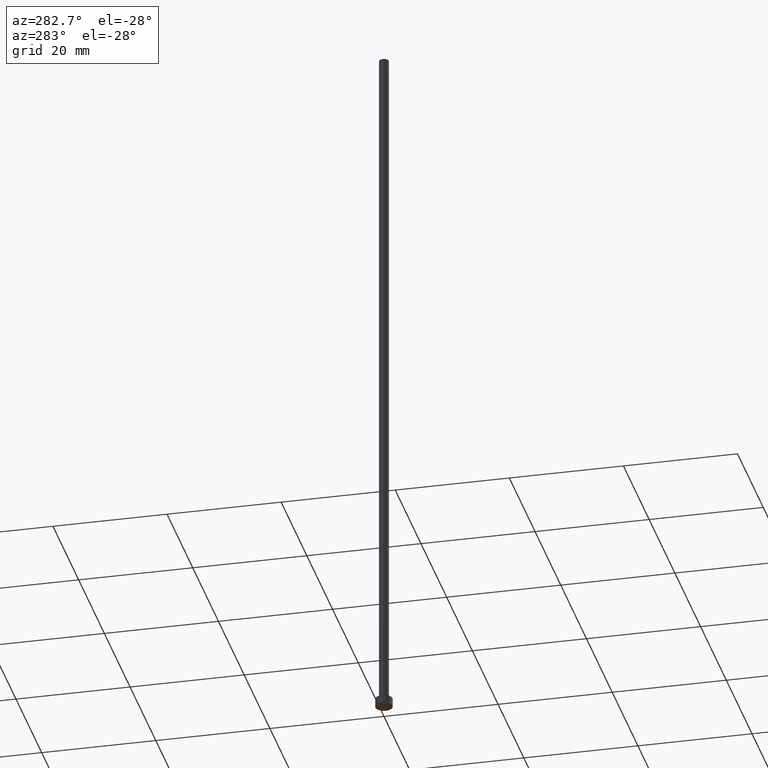
[diagram: clean part render]
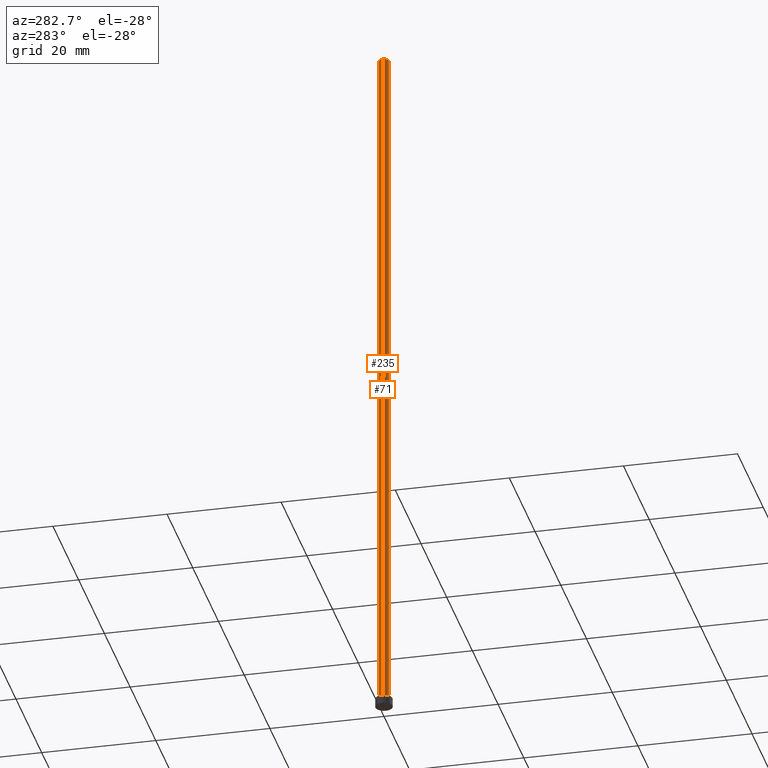
[diagram: same view with one multi-face feature highlighted, each face labeled with its STEP entity id]
A machine part, auxiliary view. The highlighted faces form ONE feature: a constant-radius fillet chain: 2 tangent blend faces with common blend radius 0.85 mm. The faces share edges in the B-rep.
Their STEP definitions:
[1] entity #235 (Cylinder):
#20 = EDGE_LOOP ( 'NONE', ( #61, #73, #150, #156 ) ) ;
#24 = FACE_OUTER_BOUND ( 'NONE', #20, .T. ) ;
#29 = EDGE_CURVE ( 'NONE', #188, #178, #51, .T. ) ;
#42 = EDGE_CURVE ( 'NONE', #236, #178, #84, .T. ) ;
#48 = CARTESIAN_POINT ( 'NONE',  ( 0.8499999999999999778, 1.040949779275250140E-16, 125.0000000000000000 ) ) ;
#49 = CARTESIAN_POINT ( 'NONE',  ( 0.000000000000000000, 0.000000000000000000, 1.500000000000000000 ) ) ;
#51 = CIRCLE ( 'NONE', #131, 0.8499999999999999778 ) ;
#61 = ORIENTED_EDGE ( 'NONE', *, *, #42, .F. ) ;
#64 = CYLINDRICAL_SURFACE ( 'NONE', #226, 0.8499999999999999778 ) ;
#73 = ORIENTED_EDGE ( 'NONE', *, *, #111, .F. ) ;
#79 = LINE ( 'NONE', #91, #253 ) ;
#84 = LINE ( 'NONE', #48, #151 ) ;
#86 = CARTESIAN_POINT ( 'NONE',  ( 0.8499999999999999778, 1.040949779275250140E-16, 125.0000000000000000 ) ) ;
#91 = CARTESIAN_POINT ( 'NONE',  ( -0.8499999999999999778, 0.000000000000000000, 125.0000000000000000 ) ) ;
#94 = CARTESIAN_POINT ( 'NONE',  ( -0.8499999999999999778, 0.000000000000000000, 125.0000000000000000 ) ) ;
#101 = VERTEX_POINT ( 'NONE', #94 ) ;
#106 = CARTESIAN_POINT ( 'NONE',  ( 0.000000000000000000, 0.000000000000000000, 125.0000000000000000 ) ) ;
#108 = DIRECTION ( 'NONE',  ( 1.000000000000000000, 0.000000000000000000, 0.000000000000000000 ) ) ;
#110 = DIRECTION ( 'NONE',  ( -0.000000000000000000, -0.000000000000000000, -1.000000000000000000 ) ) ;
#111 = EDGE_CURVE ( 'NONE', #101, #236, #148, .T. ) ;
#114 = CARTESIAN_POINT ( 'NONE',  ( -0.8499999999999999778, 0.000000000000000000, 1.500000000000000000 ) ) ;
#131 = AXIS2_PLACEMENT_3D ( 'NONE', #49, #230, #108 ) ;
#148 = CIRCLE ( 'NONE', #234, 0.8499999999999999778 ) ;
#150 = ORIENTED_EDGE ( 'NONE', *, *, #155, .T. ) ;
#151 = VECTOR ( 'NONE', #110, 1000.000000000000000 ) ;
#155 = EDGE_CURVE ( 'NONE', #101, #188, #79, .T. ) ;
#156 = ORIENTED_EDGE ( 'NONE', *, *, #29, .T. ) ;
#165 = DIRECTION ( 'NONE',  ( 1.000000000000000000, 0.000000000000000000, 0.000000000000000000 ) ) ;
#174 = DIRECTION ( 'NONE',  ( -1.000000000000000000, 0.000000000000000000, 0.000000000000000000 ) ) ;
#178 = VERTEX_POINT ( 'NONE', #215 ) ;
#187 = CARTESIAN_POINT ( 'NONE',  ( 0.000000000000000000, 0.000000000000000000, 125.0000000000000000 ) ) ;
#188 = VERTEX_POINT ( 'NONE', #114 ) ;
#196 = DIRECTION ( 'NONE',  ( -0.000000000000000000, -0.000000000000000000, -1.000000000000000000 ) ) ;
#204 = DIRECTION ( 'NONE',  ( 0.000000000000000000, 0.000000000000000000, 1.000000000000000000 ) ) ;
#215 = CARTESIAN_POINT ( 'NONE',  ( 0.8499999999999999778, 1.040949779275250140E-16, 1.500000000000000000 ) ) ;
#226 = AXIS2_PLACEMENT_3D ( 'NONE', #106, #196, #174 ) ;
#230 = DIRECTION ( 'NONE',  ( 0.000000000000000000, 0.000000000000000000, 1.000000000000000000 ) ) ;
#234 = AXIS2_PLACEMENT_3D ( 'NONE', #187, #204, #165 ) ;
#235 = ADVANCED_FACE ( 'NONE', ( #24 ), #64, .T. ) ;
#236 = VERTEX_POINT ( 'NONE', #86 ) ;
#243 = DIRECTION ( 'NONE',  ( -0.000000000000000000, -0.000000000000000000, -1.000000000000000000 ) ) ;
#253 = VECTOR ( 'NONE', #243, 1000.000000000000000 ) ;
[2] entity #71 (Cylinder):
#17 = CIRCLE ( 'NONE', #88, 0.8499999999999999778 ) ;
#19 = DIRECTION ( 'NONE',  ( 1.000000000000000000, 0.000000000000000000, 0.000000000000000000 ) ) ;
#21 = CARTESIAN_POINT ( 'NONE',  ( 0.000000000000000000, 0.000000000000000000, 125.0000000000000000 ) ) ;
#42 = EDGE_CURVE ( 'NONE', #236, #178, #84, .T. ) ;
#44 = FACE_OUTER_BOUND ( 'NONE', #119, .T. ) ;
#47 = AXIS2_PLACEMENT_3D ( 'NONE', #125, #216, #50 ) ;
#48 = CARTESIAN_POINT ( 'NONE',  ( 0.8499999999999999778, 1.040949779275250140E-16, 125.0000000000000000 ) ) ;
#50 = DIRECTION ( 'NONE',  ( 1.000000000000000000, 0.000000000000000000, 0.000000000000000000 ) ) ;
#71 = ADVANCED_FACE ( 'NONE', ( #44 ), #124, .T. ) ;
#79 = LINE ( 'NONE', #91, #253 ) ;
#84 = LINE ( 'NONE', #48, #151 ) ;
#86 = CARTESIAN_POINT ( 'NONE',  ( 0.8499999999999999778, 1.040949779275250140E-16, 125.0000000000000000 ) ) ;
#88 = AXIS2_PLACEMENT_3D ( 'NONE', #200, #112, #19 ) ;
#91 = CARTESIAN_POINT ( 'NONE',  ( -0.8499999999999999778, 0.000000000000000000, 125.0000000000000000 ) ) ;
#92 = CIRCLE ( 'NONE', #47, 0.8499999999999999778 ) ;
#94 = CARTESIAN_POINT ( 'NONE',  ( -0.8499999999999999778, 0.000000000000000000, 125.0000000000000000 ) ) ;
#96 = DIRECTION ( 'NONE',  ( -1.000000000000000000, 0.000000000000000000, 0.000000000000000000 ) ) ;
#98 = AXIS2_PLACEMENT_3D ( 'NONE', #21, #104, #96 ) ;
#101 = VERTEX_POINT ( 'NONE', #94 ) ;
#104 = DIRECTION ( 'NONE',  ( -0.000000000000000000, -0.000000000000000000, -1.000000000000000000 ) ) ;
#107 = ORIENTED_EDGE ( 'NONE', *, *, #42, .T. ) ;
#110 = DIRECTION ( 'NONE',  ( -0.000000000000000000, -0.000000000000000000, -1.000000000000000000 ) ) ;
#112 = DIRECTION ( 'NONE',  ( 0.000000000000000000, 0.000000000000000000, 1.000000000000000000 ) ) ;
#114 = CARTESIAN_POINT ( 'NONE',  ( -0.8499999999999999778, 0.000000000000000000, 1.500000000000000000 ) ) ;
#119 = EDGE_LOOP ( 'NONE', ( #136, #107, #195, #244 ) ) ;
#124 = CYLINDRICAL_SURFACE ( 'NONE', #98, 0.8499999999999999778 ) ;
#125 = CARTESIAN_POINT ( 'NONE',  ( 0.000000000000000000, 0.000000000000000000, 125.0000000000000000 ) ) ;
#136 = ORIENTED_EDGE ( 'NONE', *, *, #221, .F. ) ;
#151 = VECTOR ( 'NONE', #110, 1000.000000000000000 ) ;
#155 = EDGE_CURVE ( 'NONE', #101, #188, #79, .T. ) ;
#178 = VERTEX_POINT ( 'NONE', #215 ) ;
#188 = VERTEX_POINT ( 'NONE', #114 ) ;
#195 = ORIENTED_EDGE ( 'NONE', *, *, #201, .T. ) ;
#200 = CARTESIAN_POINT ( 'NONE',  ( 0.000000000000000000, 0.000000000000000000, 1.500000000000000000 ) ) ;
#201 = EDGE_CURVE ( 'NONE', #178, #188, #17, .T. ) ;
#215 = CARTESIAN_POINT ( 'NONE',  ( 0.8499999999999999778, 1.040949779275250140E-16, 1.500000000000000000 ) ) ;
#216 = DIRECTION ( 'NONE',  ( 0.000000000000000000, 0.000000000000000000, 1.000000000000000000 ) ) ;
#221 = EDGE_CURVE ( 'NONE', #236, #101, #92, .T. ) ;
#236 = VERTEX_POINT ( 'NONE', #86 ) ;
#243 = DIRECTION ( 'NONE',  ( -0.000000000000000000, -0.000000000000000000, -1.000000000000000000 ) ) ;
#244 = ORIENTED_EDGE ( 'NONE', *, *, #155, .F. ) ;
#253 = VECTOR ( 'NONE', #243, 1000.000000000000000 ) ;